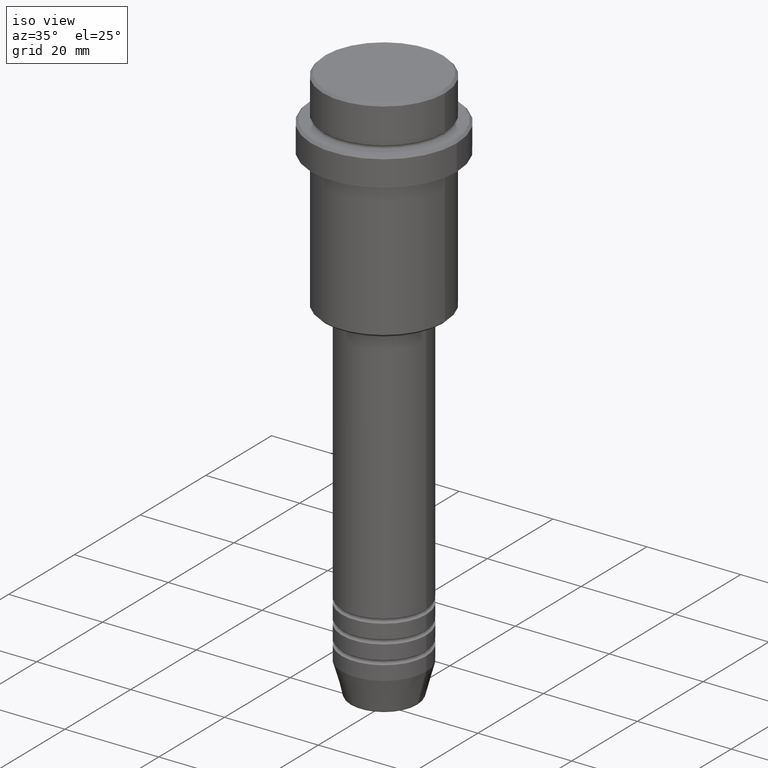
[diagram: clean part render]
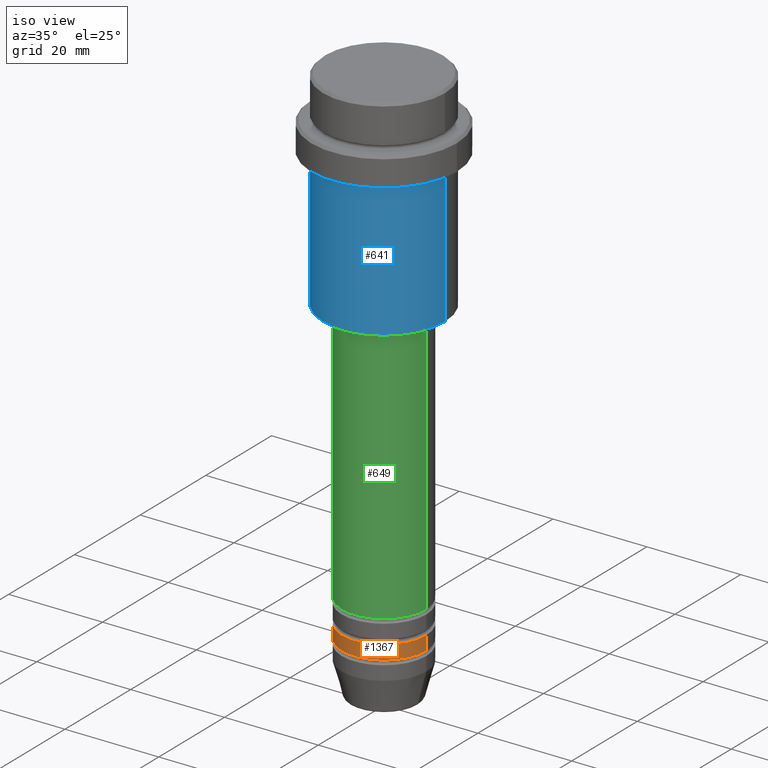
[diagram: same view with three faces highlighted in distinct colors, each labeled with its STEP entity id]
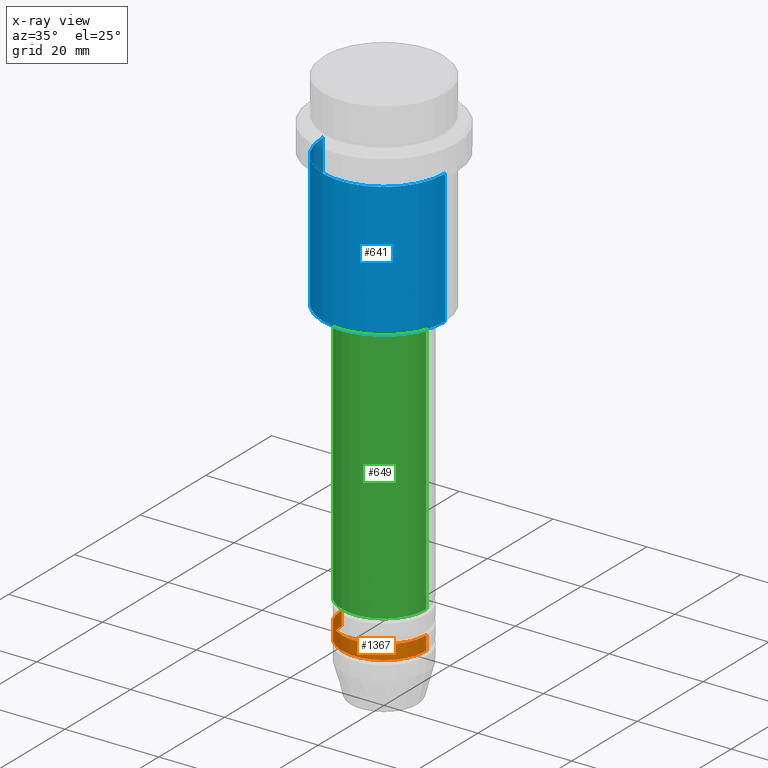
[diagram: x-ray of the same camera — body ghosted, the three highlighted faces saturated]
A machine part, iso view with three faces highlighted in distinct colors.
The next image is the same camera in x-ray (body ghosted, the three faces saturated) — at least one of them is partly hidden behind the body in this view.
Their STEP definitions:

[orange] entity #1367 — the highlighted cylindrical surface (partial cylindrical patch) has radius 9 mm, axis along (-0, -0, 1).
#17 = CIRCLE ( 'NONE', #608, 9.000000000000000000 ) ;
#204 = DIRECTION ( 'NONE',  ( -0.000000000000000000, -0.000000000000000000, 1.000000000000000000 ) ) ;
#217 = ORIENTED_EDGE ( 'NONE', *, *, #1410, .T. ) ;
#257 = CARTESIAN_POINT ( 'NONE',  ( -9.000000000000000000, 1.102182119232617714E-15, 0.000000000000000000 ) ) ;
#267 = CIRCLE ( 'NONE', #473, 9.000000000000000000 ) ;
#305 = DIRECTION ( 'NONE',  ( -0.000000000000000000, -0.000000000000000000, 1.000000000000000000 ) ) ;
#310 = CARTESIAN_POINT ( 'NONE',  ( 0.000000000000000000, 0.000000000000000000, -105.9999999999998721 ) ) ;
#391 = CARTESIAN_POINT ( 'NONE',  ( 9.000000000000000000, 0.000000000000000000, -105.9999999999998721 ) ) ;
#436 = CARTESIAN_POINT ( 'NONE',  ( 9.000000000000000000, 0.000000000000000000, 0.000000000000000000 ) ) ;
#473 = AXIS2_PLACEMENT_3D ( 'NONE', #510, #642, #620 ) ;
#499 = EDGE_CURVE ( 'NONE', #883, #981, #17, .T. ) ;
#510 = CARTESIAN_POINT ( 'NONE',  ( 0.000000000000000000, 0.000000000000000000, -108.9999999999998721 ) ) ;
#524 = FACE_OUTER_BOUND ( 'NONE', #1133, .T. ) ;
#541 = VECTOR ( 'NONE', #757, 1000.000000000000000 ) ;
#608 = AXIS2_PLACEMENT_3D ( 'NONE', #310, #305, #1194 ) ;
#620 = DIRECTION ( 'NONE',  ( 1.000000000000000000, 0.000000000000000000, 0.000000000000000000 ) ) ;
#624 = ORIENTED_EDGE ( 'NONE', *, *, #926, .T. ) ;
#629 = LINE ( 'NONE', #436, #541 ) ;
#642 = DIRECTION ( 'NONE',  ( -0.000000000000000000, -0.000000000000000000, 1.000000000000000000 ) ) ;
#664 = VERTEX_POINT ( 'NONE', #905 ) ;
#757 = DIRECTION ( 'NONE',  ( -0.000000000000000000, -0.000000000000000000, 1.000000000000000000 ) ) ;
#856 = EDGE_CURVE ( 'NONE', #1384, #883, #1358, .T. ) ;
#864 = VECTOR ( 'NONE', #1131, 1000.000000000000000 ) ;
#883 = VERTEX_POINT ( 'NONE', #958 ) ;
#905 = CARTESIAN_POINT ( 'NONE',  ( 9.000000000000000000, 0.000000000000000000, -108.9999999999998721 ) ) ;
#926 = EDGE_CURVE ( 'NONE', #1384, #664, #267, .T. ) ;
#958 = CARTESIAN_POINT ( 'NONE',  ( -9.000000000000000000, 1.102182119232617714E-15, -105.9999999999998721 ) ) ;
#981 = VERTEX_POINT ( 'NONE', #391 ) ;
#1073 = AXIS2_PLACEMENT_3D ( 'NONE', #1205, #204, #1293 ) ;
#1074 = CYLINDRICAL_SURFACE ( 'NONE', #1073, 9.000000000000000000 ) ;
#1131 = DIRECTION ( 'NONE',  ( -0.000000000000000000, -0.000000000000000000, 1.000000000000000000 ) ) ;
#1133 = EDGE_LOOP ( 'NONE', ( #1175, #624, #217, #1343 ) ) ;
#1175 = ORIENTED_EDGE ( 'NONE', *, *, #856, .F. ) ;
#1178 = CARTESIAN_POINT ( 'NONE',  ( -9.000000000000000000, 1.102182119232617714E-15, -108.9999999999998721 ) ) ;
#1194 = DIRECTION ( 'NONE',  ( 1.000000000000000000, 0.000000000000000000, 0.000000000000000000 ) ) ;
#1205 = CARTESIAN_POINT ( 'NONE',  ( 0.000000000000000000, 0.000000000000000000, 0.000000000000000000 ) ) ;
#1293 = DIRECTION ( 'NONE',  ( 1.000000000000000000, 0.000000000000000000, 0.000000000000000000 ) ) ;
#1343 = ORIENTED_EDGE ( 'NONE', *, *, #499, .F. ) ;
#1358 = LINE ( 'NONE', #257, #864 ) ;
#1367 = ADVANCED_FACE ( 'NONE', ( #524 ), #1074, .T. ) ;
#1384 = VERTEX_POINT ( 'NONE', #1178 ) ;
#1410 = EDGE_CURVE ( 'NONE', #664, #981, #629, .T. ) ;

[blue] entity #641 — the highlighted cylindrical surface (partial cylindrical patch) has radius 13 mm, axis along (-0, -0, 1).
#3 = CARTESIAN_POINT ( 'NONE',  ( 0.000000000000000000, 0.000000000000000000, 0.000000000000000000 ) ) ;
#36 = CARTESIAN_POINT ( 'NONE',  ( 13.00000000000000000, 0.000000000000000000, -16.00000000000000000 ) ) ;
#50 = CARTESIAN_POINT ( 'NONE',  ( -13.00000000000000000, 1.592040838891559095E-15, -16.00000000000000000 ) ) ;
#51 = LINE ( 'NONE', #385, #844 ) ;
#157 = DIRECTION ( 'NONE',  ( -0.000000000000000000, -0.000000000000000000, 1.000000000000000000 ) ) ;
#179 = CARTESIAN_POINT ( 'NONE',  ( 0.000000000000000000, 0.000000000000000000, -16.00000000000000000 ) ) ;
#229 = CYLINDRICAL_SURFACE ( 'NONE', #794, 13.00000000000000000 ) ;
#255 = ORIENTED_EDGE ( 'NONE', *, *, #1063, .T. ) ;
#328 = DIRECTION ( 'NONE',  ( -1.000000000000000000, 0.000000000000000000, 0.000000000000000000 ) ) ;
#339 = VERTEX_POINT ( 'NONE', #36 ) ;
#358 = DIRECTION ( 'NONE',  ( -0.000000000000000000, -0.000000000000000000, 1.000000000000000000 ) ) ;
#385 = CARTESIAN_POINT ( 'NONE',  ( -13.00000000000000000, 1.592040838891559095E-15, 0.000000000000000000 ) ) ;
#431 = AXIS2_PLACEMENT_3D ( 'NONE', #179, #600, #824 ) ;
#461 = CARTESIAN_POINT ( 'NONE',  ( 13.00000000000000000, 0.000000000000000000, -44.50000000000000000 ) ) ;
#600 = DIRECTION ( 'NONE',  ( -0.000000000000000000, -0.000000000000000000, 1.000000000000000000 ) ) ;
#641 = ADVANCED_FACE ( 'NONE', ( #875 ), #229, .T. ) ;
#658 = EDGE_CURVE ( 'NONE', #1412, #1108, #1414, .T. ) ;
#675 = DIRECTION ( 'NONE',  ( 1.000000000000000000, 0.000000000000000000, 0.000000000000000000 ) ) ;
#755 = LINE ( 'NONE', #777, #1255 ) ;
#763 = CARTESIAN_POINT ( 'NONE',  ( 0.000000000000000000, 0.000000000000000000, -44.50000000000000000 ) ) ;
#777 = CARTESIAN_POINT ( 'NONE',  ( 13.00000000000000000, 0.000000000000000000, 0.000000000000000000 ) ) ;
#794 = AXIS2_PLACEMENT_3D ( 'NONE', #3, #358, #675 ) ;
#824 = DIRECTION ( 'NONE',  ( 1.000000000000000000, 0.000000000000000000, 0.000000000000000000 ) ) ;
#837 = VERTEX_POINT ( 'NONE', #50 ) ;
#844 = VECTOR ( 'NONE', #157, 1000.000000000000000 ) ;
#875 = FACE_OUTER_BOUND ( 'NONE', #962, .T. ) ;
#896 = DIRECTION ( 'NONE',  ( -0.000000000000000000, -0.000000000000000000, 1.000000000000000000 ) ) ;
#902 = ORIENTED_EDGE ( 'NONE', *, *, #658, .T. ) ;
#962 = EDGE_LOOP ( 'NONE', ( #1052, #902, #255, #1244 ) ) ;
#1048 = CIRCLE ( 'NONE', #431, 13.00000000000000000 ) ;
#1052 = ORIENTED_EDGE ( 'NONE', *, *, #1251, .F. ) ;
#1063 = EDGE_CURVE ( 'NONE', #1108, #339, #755, .T. ) ;
#1108 = VERTEX_POINT ( 'NONE', #461 ) ;
#1199 = CARTESIAN_POINT ( 'NONE',  ( -13.00000000000000000, 1.592040838891559095E-15, -44.50000000000000000 ) ) ;
#1244 = ORIENTED_EDGE ( 'NONE', *, *, #1245, .F. ) ;
#1245 = EDGE_CURVE ( 'NONE', #837, #339, #1048, .T. ) ;
#1251 = EDGE_CURVE ( 'NONE', #1412, #837, #51, .T. ) ;
#1255 = VECTOR ( 'NONE', #1415, 1000.000000000000000 ) ;
#1366 = AXIS2_PLACEMENT_3D ( 'NONE', #763, #896, #328 ) ;
#1412 = VERTEX_POINT ( 'NONE', #1199 ) ;
#1414 = CIRCLE ( 'NONE', #1366, 13.00000000000000000 ) ;
#1415 = DIRECTION ( 'NONE',  ( -0.000000000000000000, -0.000000000000000000, 1.000000000000000000 ) ) ;

[green] entity #649 — the highlighted cylindrical surface (partial cylindrical patch) has radius 9 mm, axis along (-0, -0, 1).
#39 = ORIENTED_EDGE ( 'NONE', *, *, #388, .T. ) ;
#63 = ORIENTED_EDGE ( 'NONE', *, *, #126, .T. ) ;
#68 = CIRCLE ( 'NONE', #289, 9.000000000000000000 ) ;
#120 = VERTEX_POINT ( 'NONE', #1377 ) ;
#126 = EDGE_CURVE ( 'NONE', #1032, #775, #68, .T. ) ;
#136 = AXIS2_PLACEMENT_3D ( 'NONE', #1368, #605, #162 ) ;
#162 = DIRECTION ( 'NONE',  ( 1.000000000000000000, 0.000000000000000000, 0.000000000000000000 ) ) ;
#284 = DIRECTION ( 'NONE',  ( -0.000000000000000000, -0.000000000000000000, 1.000000000000000000 ) ) ;
#286 = DIRECTION ( 'NONE',  ( -0.000000000000000000, -0.000000000000000000, 1.000000000000000000 ) ) ;
#289 = AXIS2_PLACEMENT_3D ( 'NONE', #1271, #286, #1167 ) ;
#366 = CARTESIAN_POINT ( 'NONE',  ( -9.000000000000001776, 1.102182119232617911E-15, 0.000000000000000000 ) ) ;
#388 = EDGE_CURVE ( 'NONE', #775, #120, #1375, .T. ) ;
#397 = ORIENTED_EDGE ( 'NONE', *, *, #839, .F. ) ;
#426 = VECTOR ( 'NONE', #284, 1000.000000000000000 ) ;
#445 = EDGE_LOOP ( 'NONE', ( #397, #63, #39, #704 ) ) ;
#459 = CARTESIAN_POINT ( 'NONE',  ( 0.000000000000000000, 0.000000000000000000, 0.000000000000000000 ) ) ;
#563 = VECTOR ( 'NONE', #1246, 1000.000000000000000 ) ;
#605 = DIRECTION ( 'NONE',  ( -0.000000000000000000, -0.000000000000000000, 1.000000000000000000 ) ) ;
#649 = ADVANCED_FACE ( 'NONE', ( #660 ), #1329, .T. ) ;
#660 = FACE_OUTER_BOUND ( 'NONE', #445, .T. ) ;
#666 = CARTESIAN_POINT ( 'NONE',  ( -9.000000000000000000, 1.102182119232617714E-15, -100.9999999999998721 ) ) ;
#703 = AXIS2_PLACEMENT_3D ( 'NONE', #459, #1220, #1319 ) ;
#704 = ORIENTED_EDGE ( 'NONE', *, *, #1225, .F. ) ;
#775 = VERTEX_POINT ( 'NONE', #927 ) ;
#811 = CARTESIAN_POINT ( 'NONE',  ( 9.000000000000001776, 0.000000000000000000, 0.000000000000000000 ) ) ;
#839 = EDGE_CURVE ( 'NONE', #1032, #1025, #936, .T. ) ;
#927 = CARTESIAN_POINT ( 'NONE',  ( 9.000000000000000000, 0.000000000000000000, -100.9999999999998721 ) ) ;
#936 = LINE ( 'NONE', #366, #563 ) ;
#971 = CARTESIAN_POINT ( 'NONE',  ( -9.000000000000001776, 1.102182119232617911E-15, -45.99999999999997868 ) ) ;
#1025 = VERTEX_POINT ( 'NONE', #971 ) ;
#1032 = VERTEX_POINT ( 'NONE', #666 ) ;
#1167 = DIRECTION ( 'NONE',  ( 1.000000000000000000, 0.000000000000000000, 0.000000000000000000 ) ) ;
#1220 = DIRECTION ( 'NONE',  ( -0.000000000000000000, -0.000000000000000000, 1.000000000000000000 ) ) ;
#1225 = EDGE_CURVE ( 'NONE', #1025, #120, #1392, .T. ) ;
#1246 = DIRECTION ( 'NONE',  ( -0.000000000000000000, -0.000000000000000000, 1.000000000000000000 ) ) ;
#1271 = CARTESIAN_POINT ( 'NONE',  ( 0.000000000000000000, 0.000000000000000000, -100.9999999999998721 ) ) ;
#1319 = DIRECTION ( 'NONE',  ( 1.000000000000000000, 0.000000000000000000, 0.000000000000000000 ) ) ;
#1329 = CYLINDRICAL_SURFACE ( 'NONE', #703, 9.000000000000001776 ) ;
#1368 = CARTESIAN_POINT ( 'NONE',  ( 0.000000000000000000, 0.000000000000000000, -45.99999999999997868 ) ) ;
#1375 = LINE ( 'NONE', #811, #426 ) ;
#1377 = CARTESIAN_POINT ( 'NONE',  ( 9.000000000000001776, 0.000000000000000000, -45.99999999999997868 ) ) ;
#1392 = CIRCLE ( 'NONE', #136, 9.000000000000001776 ) ;